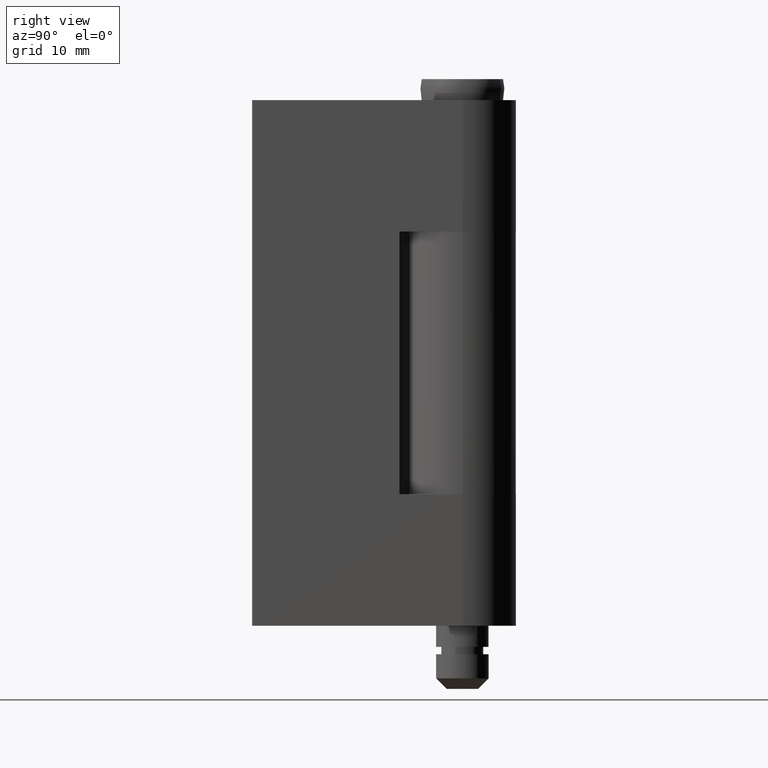
[diagram: clean part render]
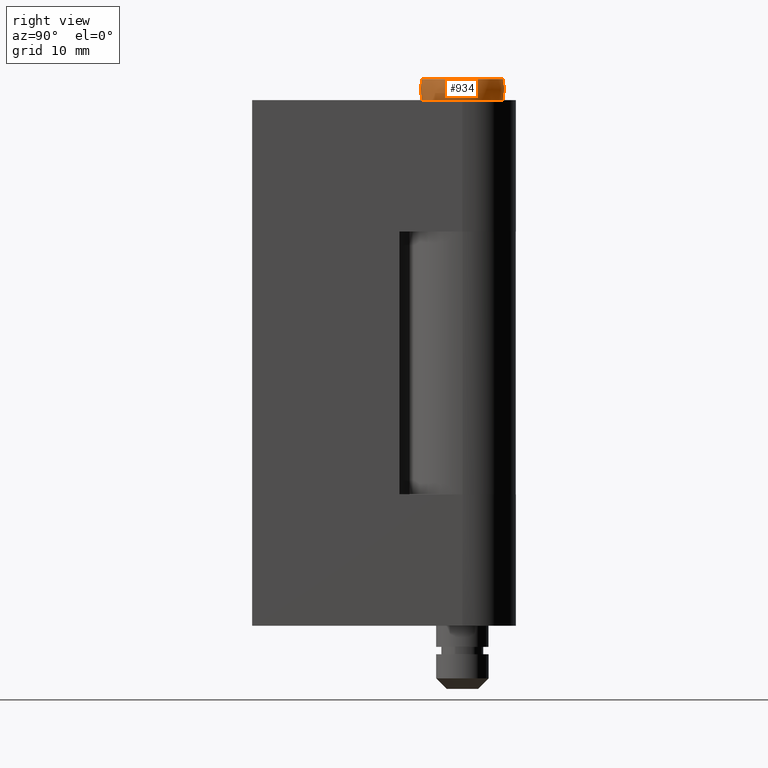
[diagram: same view with one face highlighted and labeled with its STEP entity id]
A machine part, right view. The second image highlights one B-rep face of the part: STEP entity #934.
In plain terms, the highlighted face is a freeform B-spline surface patch.
Its self-contained STEP definition (entity closure, byte-faithful):
#749=CARTESIAN_POINT('',(-3.872983346207445,0.0,56.0));
#750=VERTEX_POINT('',#749);
#751=CARTESIAN_POINT('',(3.872983346207445,0.0,56.0));
#752=VERTEX_POINT('',#751);
#753=CARTESIAN_POINT('',(-3.872983346207445,0.0,56.0));
#754=CARTESIAN_POINT('',(-3.872983346207445,3.872983346207445,55.999999999999986));
#755=CARTESIAN_POINT('',(0.0,3.872983346207445,56.0));
#756=CARTESIAN_POINT('',(3.872983346207445,3.872983346207445,55.999999999999986));
#757=CARTESIAN_POINT('',(3.872983346207445,0.0,56.0));
#765=(BOUNDED_CURVE()B_SPLINE_CURVE(2,(#753,#754,#755,#756,#757),.UNSPECIFIED.,.F.,.U.)B_SPLINE_CURVE_WITH_KNOTS((3,2,3),(0.0,0.250000000000000,0.500000000000000),.UNSPECIFIED.)CURVE()GEOMETRIC_REPRESENTATION_ITEM()RATIONAL_B_SPLINE_CURVE((1.0,0.707106781186547,1.0,0.707106781186547,1.0))REPRESENTATION_ITEM(''));
#766=EDGE_CURVE('',#750,#752,#765,.T.);
#768=CARTESIAN_POINT('',(3.872983346207445,0.0,56.0));
#769=CARTESIAN_POINT('',(3.872983346207445,-3.872983346207445,55.999999999999986));
#770=CARTESIAN_POINT('',(0.0,-3.872983346207445,56.0));
#771=CARTESIAN_POINT('',(-3.872983346207445,-3.872983346207445,55.999999999999986));
#772=CARTESIAN_POINT('',(-3.872983346207445,0.0,56.0));
#780=(BOUNDED_CURVE()B_SPLINE_CURVE(2,(#768,#769,#770,#771,#772),.UNSPECIFIED.,.F.,.U.)B_SPLINE_CURVE_WITH_KNOTS((3,2,3),(0.500000000000000,0.750000000000000,1.0),.UNSPECIFIED.)CURVE()GEOMETRIC_REPRESENTATION_ITEM()RATIONAL_B_SPLINE_CURVE((1.0,0.707106781186547,1.0,0.707106781186547,1.0))REPRESENTATION_ITEM(''));
#781=EDGE_CURVE('',#752,#750,#780,.T.);
#845=CARTESIAN_POINT('',(3.872983346207390,0.0,58.0));
#846=VERTEX_POINT('',#845);
#847=CARTESIAN_POINT('',(-3.872983346207390,0.0,58.0));
#848=VERTEX_POINT('',#847);
#849=CARTESIAN_POINT('',(3.872983346207390,0.0,58.0));
#850=CARTESIAN_POINT('',(3.872983346207390,-3.872983346207390,58.0));
#851=CARTESIAN_POINT('',(0.0,-3.872983346207390,58.0));
#852=CARTESIAN_POINT('',(-3.872983346207390,-3.872983346207390,58.0));
#853=CARTESIAN_POINT('',(-3.872983346207390,0.0,58.0));
#861=(BOUNDED_CURVE()B_SPLINE_CURVE(2,(#849,#850,#851,#852,#853),.UNSPECIFIED.,.F.,.U.)B_SPLINE_CURVE_WITH_KNOTS((3,2,3),(0.500000000000000,0.750000000000000,1.0),.UNSPECIFIED.)CURVE()GEOMETRIC_REPRESENTATION_ITEM()RATIONAL_B_SPLINE_CURVE((1.0,0.707106781186548,1.0,0.707106781186548,1.0))REPRESENTATION_ITEM(''));
#862=EDGE_CURVE('',#846,#848,#861,.T.);
#864=CARTESIAN_POINT('',(-3.872983346207390,0.0,58.0));
#865=CARTESIAN_POINT('',(-3.872983346207390,3.872983346207390,58.0));
#866=CARTESIAN_POINT('',(0.0,3.872983346207390,58.0));
#867=CARTESIAN_POINT('',(3.872983346207390,3.872983346207390,58.0));
#868=CARTESIAN_POINT('',(3.872983346207390,0.0,58.0));
#876=(BOUNDED_CURVE()B_SPLINE_CURVE(2,(#864,#865,#866,#867,#868),.UNSPECIFIED.,.F.,.U.)B_SPLINE_CURVE_WITH_KNOTS((3,2,3),(0.0,0.250000000000000,0.500000000000000),.UNSPECIFIED.)CURVE()GEOMETRIC_REPRESENTATION_ITEM()RATIONAL_B_SPLINE_CURVE((1.0,0.707106781186548,1.0,0.707106781186548,1.0))REPRESENTATION_ITEM(''));
#877=EDGE_CURVE('',#848,#846,#876,.T.);
#882=CARTESIAN_POINT('',(-2.333288324347604,2.333288324347604,59.260869565217405));
#883=CARTESIAN_POINT('',(-2.175633707837631,2.900844943783508,58.837837837837846));
#884=CARTESIAN_POINT('',(-0.958314847499909,3.833259389999637,58.142857142857146));
#885=CARTESIAN_POINT('',(0.958314847499909,3.833259389999637,58.142857142857146));
#886=CARTESIAN_POINT('',(2.175633707837631,2.900844943783508,58.837837837837846));
#887=CARTESIAN_POINT('',(2.333288324347604,2.333288324347604,59.260869565217405));
#888=CARTESIAN_POINT('',(-2.900844943783508,2.175633707837632,58.837837837837846));
#889=CARTESIAN_POINT('',(-2.874944542499728,2.874944542499728,58.142857142857146));
#890=CARTESIAN_POINT('',(-1.412253459473551,4.236760378420653,56.789473684210520));
#891=CARTESIAN_POINT('',(1.412253459473551,4.236760378420653,56.789473684210520));
#892=CARTESIAN_POINT('',(2.874944542499728,2.874944542499728,58.142857142857146));
#893=CARTESIAN_POINT('',(2.900844943783508,2.175633707837632,58.837837837837846));
#894=CARTESIAN_POINT('',(-3.833259389999637,0.958314847499909,58.142857142857146));
#895=CARTESIAN_POINT('',(-4.236760378420653,1.412253459473551,56.789473684210520));
#896=CARTESIAN_POINT('',(-2.683281572999753,2.683281572999751,53.0));
#897=CARTESIAN_POINT('',(2.683281572999753,2.683281572999751,53.0));
#898=CARTESIAN_POINT('',(4.236760378420653,1.412253459473551,56.789473684210520));
#899=CARTESIAN_POINT('',(3.833259389999637,0.958314847499909,58.142857142857146));
#900=CARTESIAN_POINT('',(-3.833259389999637,-0.958314847499909,58.142857142857146));
#901=CARTESIAN_POINT('',(-4.236760378420653,-1.412253459473551,56.789473684210520));
#902=CARTESIAN_POINT('',(-2.683281572999753,-2.683281572999753,53.0));
#903=CARTESIAN_POINT('',(2.683281572999753,-2.683281572999753,53.0));
#904=CARTESIAN_POINT('',(4.236760378420653,-1.412253459473551,56.789473684210520));
#905=CARTESIAN_POINT('',(3.833259389999637,-0.958314847499909,58.142857142857146));
#906=CARTESIAN_POINT('',(-2.900844943783508,-2.175633707837631,58.837837837837846));
#907=CARTESIAN_POINT('',(-2.874944542499728,-2.874944542499727,58.142857142857146));
#908=CARTESIAN_POINT('',(-1.412253459473551,-4.236760378420653,56.789473684210520));
#909=CARTESIAN_POINT('',(1.412253459473551,-4.236760378420653,56.789473684210520));
#910=CARTESIAN_POINT('',(2.874944542499728,-2.874944542499727,58.142857142857146));
#911=CARTESIAN_POINT('',(2.900844943783508,-2.175633707837631,58.837837837837846));
#912=CARTESIAN_POINT('',(-2.333288324347604,-2.333288324347604,59.260869565217405));
#913=CARTESIAN_POINT('',(-2.175633707837631,-2.900844943783508,58.837837837837846));
#914=CARTESIAN_POINT('',(-0.958314847499909,-3.833259389999637,58.142857142857146));
#915=CARTESIAN_POINT('',(0.958314847499909,-3.833259389999637,58.142857142857146));
#916=CARTESIAN_POINT('',(2.175633707837631,-2.900844943783508,58.837837837837846));
#917=CARTESIAN_POINT('',(2.333288324347604,-2.333288324347604,59.260869565217405));
#925=(BOUNDED_SURFACE()B_SPLINE_SURFACE(2,2,((#882,#888,#894,#900,#906,#912),(#883,#889,#895,#901,#907,#913),(#884,#890,#896,#902,#908,#914),(#885,#891,#897,#903,#909,#915),(#886,#892,#898,#904,#910,#916),(#887,#893,#899,#905,#911,#917)),.UNSPECIFIED.,.F.,.F.,.U.)B_SPLINE_SURFACE_WITH_KNOTS((3,1,1,1,3),(3,1,1,1,3),(0.0,4.380867874285301,8.761735748570603,13.142603622855910,17.523471497141209),(0.0,4.380867874285302,8.761735748570604,13.142603622855910,17.523471497141209),.UNSPECIFIED.)GEOMETRIC_REPRESENTATION_ITEM()RATIONAL_B_SPLINE_SURFACE(((4.600000000000014,3.700000000000010,2.800000000000007,2.800000000000007,3.700000000000010,4.600000000000014),(3.700000000000010,2.800000000000007,1.900000000000004,1.900000000000004,2.800000000000007,3.700000000000010),(2.800000000000007,1.900000000000004,1.0,1.0,1.900000000000004,2.800000000000007),(2.800000000000007,1.900000000000004,1.0,1.0,1.900000000000004,2.800000000000007),(3.700000000000010,2.800000000000007,1.900000000000004,1.900000000000004,2.800000000000007,3.700000000000010),(4.600000000000014,3.700000000000010,2.800000000000007,2.800000000000007,3.700000000000010,4.600000000000014)))REPRESENTATION_ITEM('')SURFACE());
#926=ORIENTED_EDGE('',*,*,#766,.F.);
#927=ORIENTED_EDGE('',*,*,#781,.F.);
#928=EDGE_LOOP('',(#926,#927));
#929=FACE_OUTER_BOUND('',#928,.T.);
#930=ORIENTED_EDGE('',*,*,#877,.T.);
#931=ORIENTED_EDGE('',*,*,#862,.T.);
#932=EDGE_LOOP('',(#930,#931));
#933=FACE_BOUND('',#932,.T.);
#934=ADVANCED_FACE('',(#929,#933),#925,.T.);